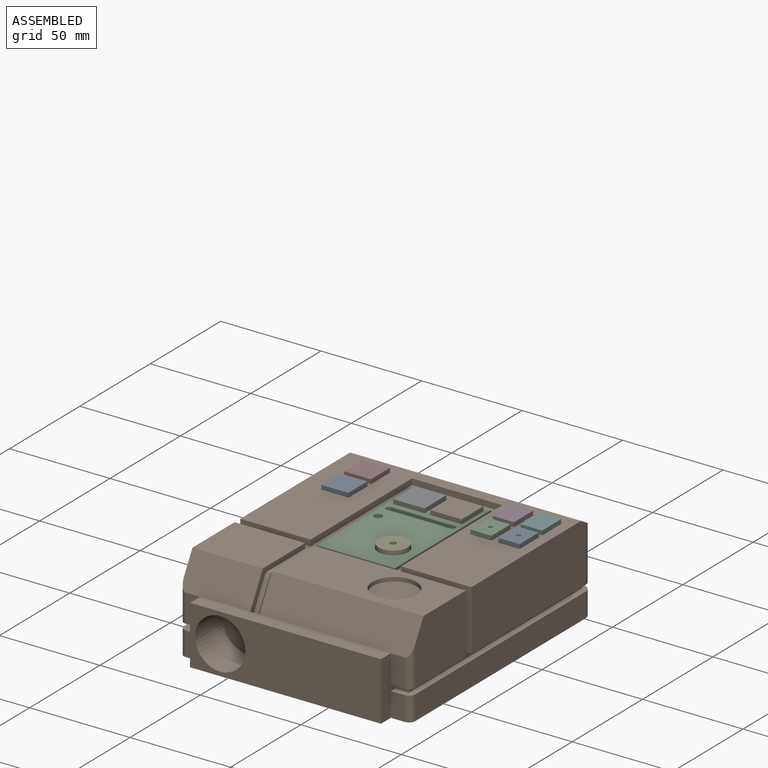
[diagram: assembled view]
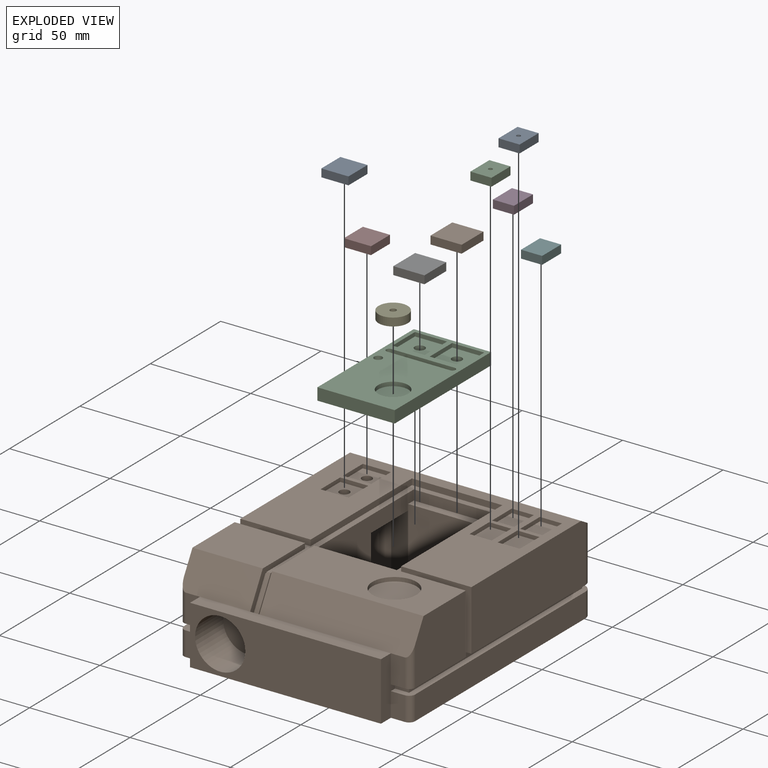
[diagram: exploded view]
GUIDED TOUR — MATED ASSEMBLY (Onshape document 15bef754259e1e879136d337, AutoMate assembly 15bef754259e1e879136d337_5ed76df7bfa122839795acea_01de834090aba72a544a0ada_default)

This assembly has 11 components, labeled P0..P10 below (a component is one placed occurrence of a part; the same part can appear more than once), held together by 10 mates. A mate is a constraint between two components; its type names the relative motion it leaves free:
  FASTENED — locks the two components together rigidly (no relative motion).
Axis/direction vectors are unit vectors and 'through' points are millimeter coordinates, both in the assembly's world frame.

MATES
  1. FASTENED "Fastened 3": P1 <-> P3, direction (0.000, 0.000, 1.000) through (65.15, 29.10, 1.29) mm
  2. FASTENED "Fastened 9": P10 <-> P6, direction (0.000, 0.000, 1.000) through (22.65, 23.60, -0.71) mm
  3. FASTENED "Fastened 1": P1 <-> P7, direction (0.000, 0.000, 1.000) through (-7.85, 29.60, 1.29) mm
  4. FASTENED "Fastened 2": P1 <-> P0, direction (0.000, 0.000, 1.000) through (-7.85, 13.60, 1.29) mm
  5. FASTENED "Fastened 10": P10 <-> P9, direction (0.000, 0.000, 1.000) through (41.15, 23.60, -0.71) mm
  6. FASTENED "Fastened 8": P10 <-> P4, direction (0.000, 0.000, 1.000) through (39.15, -18.90, -0.71) mm
  7. FASTENED "Fastened 5": P1 <-> P2, direction (0.000, 0.000, 1.000) through (65.15, 13.10, 1.29) mm
  8. FASTENED "Fastened 4": P1 <-> P5, direction (0.000, 0.000, 1.000) through (79.15, 29.10, 1.29) mm
  9. FASTENED "Fastened 6": P1 <-> P8, direction (0.000, 0.000, 1.000) through (79.15, 13.10, 1.29) mm
  10. FASTENED "Fastened 7": P1 <-> P10, direction (0.000, 0.000, 1.000) through (12.65, 33.60, -4.71) mm

ASSEMBLY ORDER
  1. P1 — the base component [order verified]
  2. P10 [order verified]
  3. P9 [order verified]
  4. P6 [order verified]
  5. P4 [order verified]
  6. P7 [order verified]
  7. P8 [order verified]
  8. P5 [order verified]
  9. P3 [order verified]
  10. P2 [order verified]
  11. P0 [order verified]
Order-tag legend:
  [order verified] — this step's position reverses a verified removal order: the component was checked to insert without passing through the ones already placed.

Of the 11 components, 1 carries the full construction recipe — the FeatureScript program that regenerates the part's solid from scratch; the rest are supplied as boundary geometry only.
Each toured component is shown spotlighted twice — in the assembled view, then in the exploded view, where a leader line traces a displaced component back to its assembled socket (saturated green if recipe-attached, orange if geometry-only; every other component desaturated gray) — followed by its recipe or geometry summary and the mates that hold it.
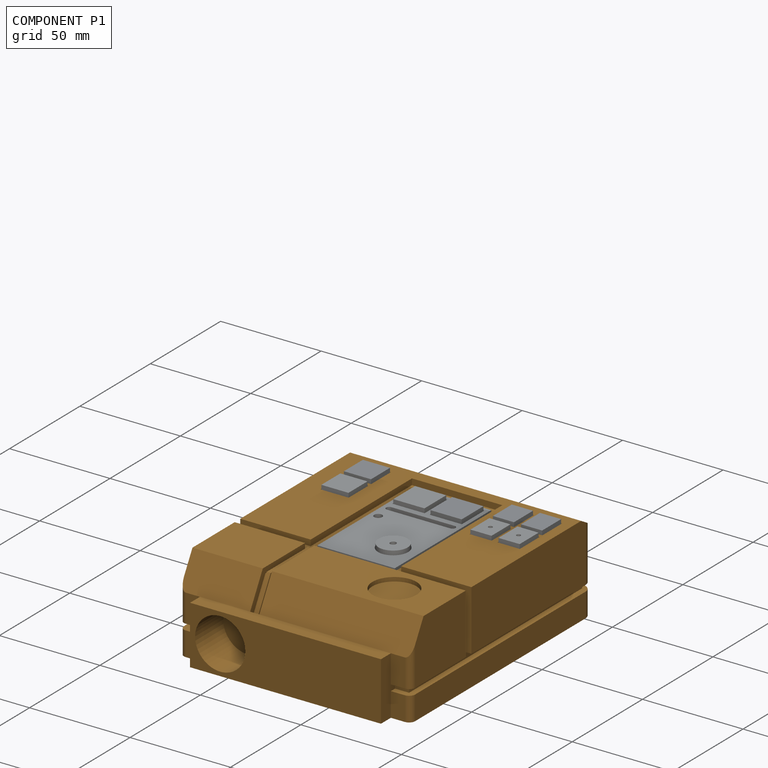
[diagram: component P1 — assembled]
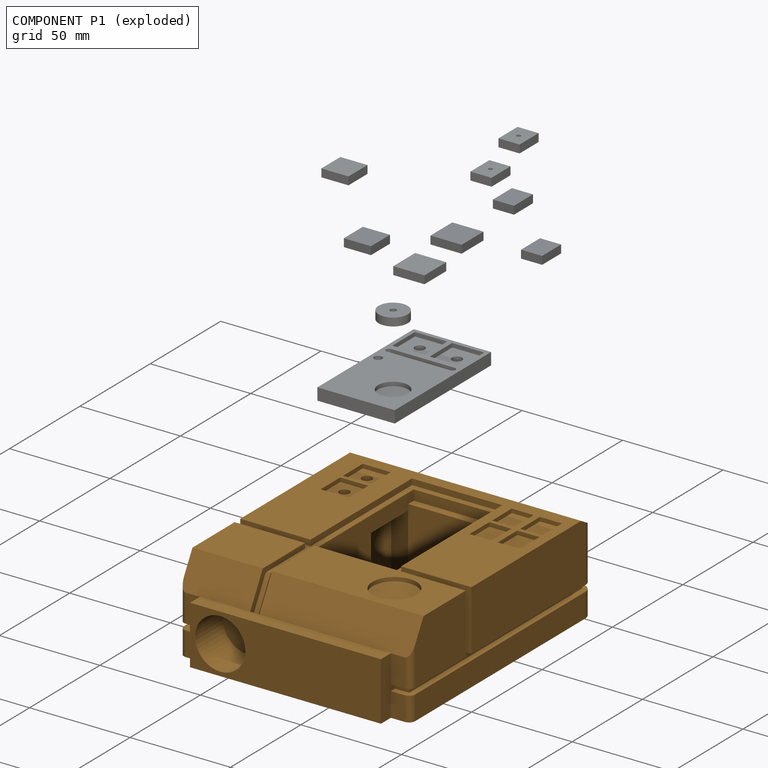
[diagram: component P1 — exploded]
COMPONENT P1 — geometry summary (no construction recipe available for this part):
  bounding box: 140.0 x 115.0 x 45.0 mm
  B-rep topology: 1 solid, 150 faces, 824 edges
  volume: 524000 mm^3 (72% of its bounding box)
Held by: FASTENED mate "Fastened 3" to P3; FASTENED mate "Fastened 1" to P7; FASTENED mate "Fastened 2" to P0; FASTENED mate "Fastened 5" to P2; FASTENED mate "Fastened 4" to P5; FASTENED mate "Fastened 6" to P8; FASTENED mate "Fastened 7" to P10.
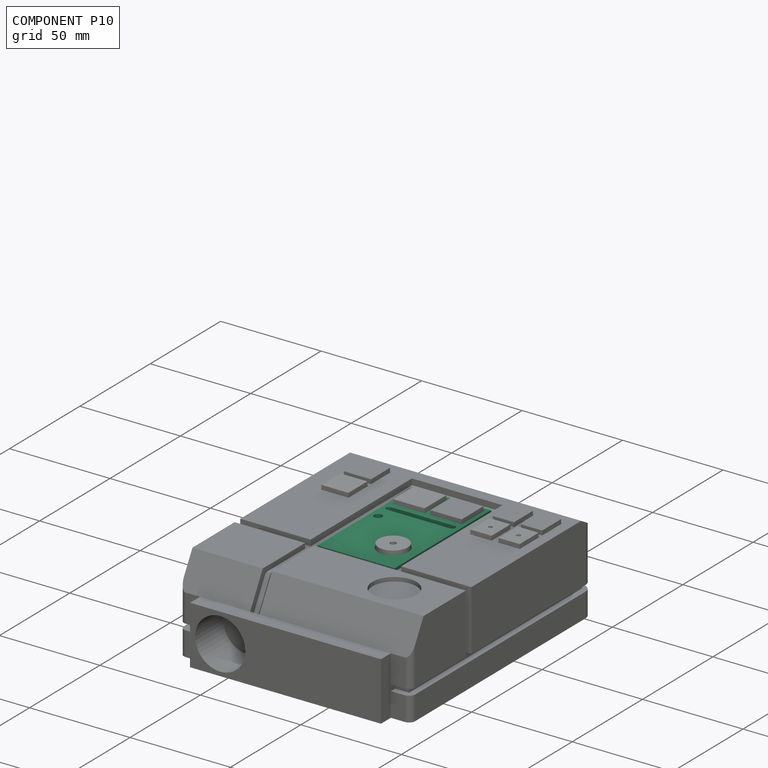
[diagram: component P10 — assembled]
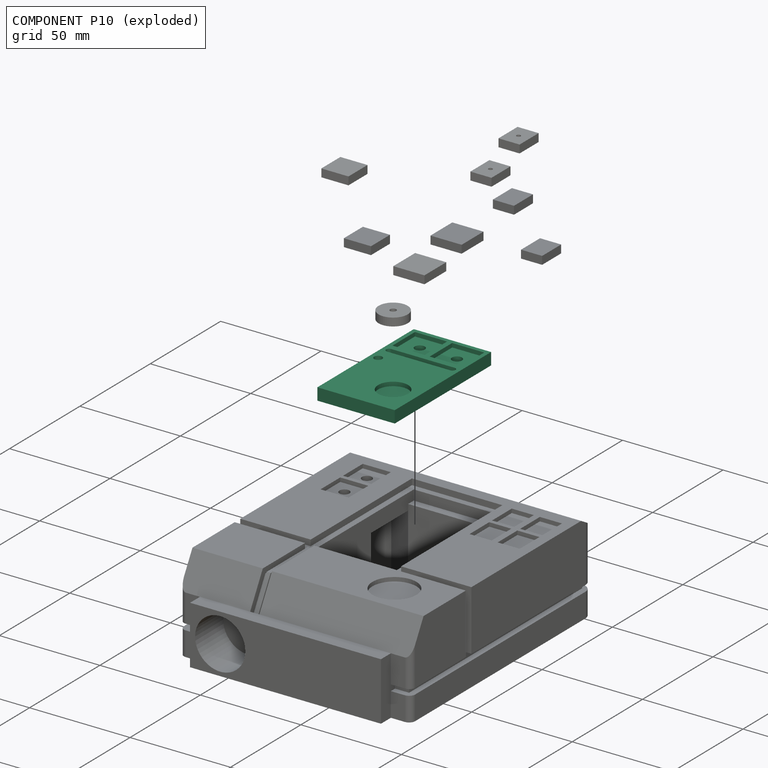
[diagram: component P10 — exploded]
COMPONENT P10 — recipe-attached (CADFS 00463688, mesh-verified: the recipe's output STEP matches this component's geometry to below the mesh-comparison resolution (tessellation chordal tolerance ~0.118 mm)).
Held by: FASTENED mate "Fastened 9" to P6; FASTENED mate "Fastened 10" to P9; FASTENED mate "Fastened 8" to P4; FASTENED mate "Fastened 7" to P1.
Construction recipe (FeatureScript — the CAD program that rebuilds this solid; sketch coordinates are in the units given by the * unit suffixes, e.g. mm):

FeatureScript 1511;
import(path : "onshape/std/geometry.fs", version : "1511.0");
import(path : "onshape/std/common.fs", version : "1511.0");
const mm = millimeter;
const VERTEX = EntityType.VERTEX;
const EDGE = EntityType.EDGE;
const FACE = EntityType.FACE;
const BODY = EntityType.BODY;
function v(x, y){return vector(x, y);}
function OD(order){return orderDisambiguation(order);}
function OSD(set){return originalSetDisambiguation(set);}
function TD(topology){return topologyDisambiguation(topology);}
function TDD(query){return trueDependencyDisambiguation(query);}
function sQuery(a, b, c) {return sketchEntityQuery(a, b, c);}

annotation { "Feature Type Name" : "Feature", "Feature Type Description" : "" }
export const myFeature = defineFeature(function(context is Context, id is Id, definition is map)
    precondition{}
    {
        {
            var Q0;
            Q0=qCreatedBy(makeId("Top.planeOp"),FACE);
            var sketch = newSketch(context, id + "F0", { "sketchPlane" : qUnion([Q0])});
            skLineSegment(sketch, "E0.bottom", {"start": v(-19.25, 34.25) * mm, "end": v(19.25, 34.25) * mm});
            skLineSegment(sketch, "E0.top", {"start": v(-19.25, -34.25) * mm, "end": v(19.25, -34.25) * mm});
            skLineSegment(sketch, "E0.left", {"start": v(-19.25, 34.25) * mm, "end": v(-19.25, -34.25) * mm});
            skLineSegment(sketch, "E0.right", {"start": v(19.25, 34.25) * mm, "end": v(19.25, -34.25) * mm});
            skPoint(sketch, "E0.middle", {"position": v(0, 0) * mm});
            skSolve(sketch);
        }
        {
            var Q0;
            Q0 = qSketchRegion(id + "F0", true);
            extrude(context, id + "F1", {"entities" : qUnion([Q0]), "depth" : 6 * mm});
        }
        {
            var Q0;
            Q0=makeQuery(id+"F1.opExtrude","CAP_FACE",FACE,{"disambiguationData":[OSD([sQuery(id+"F0.wireOp",EDGE,"E0.bottom"),sQuery(id+"F0.wireOp",EDGE,"E0.top"),sQuery(id+"F0.wireOp",EDGE,"E0.left"),sQuery(id+"F0.wireOp",EDGE,"E0.right")])],"isStart":false});
            var sketch = newSketch(context, id + "F2", { "sketchPlane" : qUnion([Q0])});
            skLineSegment(sketch, "E1.bottom", {"start": v(-17.25, 32.25) * mm, "end": v(-1.25, 32.25) * mm});
            skLineSegment(sketch, "E1.top", {"start": v(-17.25, 16.25) * mm, "end": v(-1.25, 16.25) * mm});
            skLineSegment(sketch, "E1.left", {"start": v(-17.25, 32.25) * mm, "end": v(-17.25, 16.25) * mm});
            skLineSegment(sketch, "E1.right", {"start": v(-1.25, 32.25) * mm, "end": v(-1.25, 16.25) * mm});
            skLineSegment(sketch, "E2.bottom", {"start": v(1.25, 32.25) * mm, "end": v(17.25, 32.25) * mm});
            skLineSegment(sketch, "E2.top", {"start": v(1.25, 16.25) * mm, "end": v(17.25, 16.25) * mm});
            skLineSegment(sketch, "E2.left", {"start": v(1.25, 32.25) * mm, "end": v(1.25, 16.25) * mm});
            skLineSegment(sketch, "E2.right", {"start": v(17.25, 32.25) * mm, "end": v(17.25, 16.25) * mm});
            skLineSegment(sketch, "E3", {"start": v(-19.25, 25.57) * mm, "end": v(-17.25, 25.57) * mm, "construction": true});
            skLineSegment(sketch, "E4", {"start": v(17.25, 24.25) * mm, "end": v(19.25, 24.25) * mm, "construction": true});
            skLineSegment(sketch, "E5", {"start": v(-9.18, 34.25) * mm, "end": v(-9.25, 32.25) * mm, "construction": true});
            skLineSegment(sketch, "E6", {"start": v(11.67, 34.25) * mm, "end": v(11.67, 32.25) * mm, "construction": true});
            skSolve(sketch);
        }
        {
            var Q0;
            Q0=makeQuery(id+"F2.imprint","IMPRINT",FACE,{"disambiguationData":[TD([[makeQuery(id+"F2.imprint","IMPRINT",EDGE,{"derivedFrom":sQuery(id+"F2.wireOp",EDGE,"E1.bottom")}),-1.0]])]});
            var Q1;
            Q1=makeQuery(id+"F2.imprint","IMPRINT",FACE,{"disambiguationData":[TD([[makeQuery(id+"F2.imprint","IMPRINT",EDGE,{"derivedFrom":sQuery(id+"F2.wireOp",EDGE,"E2.bottom")}),-1.0]])]});
            extrude(context, id + "F3", {"entities" : qUnion([Q0, Q1]), "operationType" : NewBodyOperationType.REMOVE, "oppositeDirection" : true, "depth" : 2 * mm});
        }
        {
            var Q0;
            Q0=makeQuery(id+"F1.opExtrude","CAP_FACE",FACE,{"disambiguationData":[OSD([sQuery(id+"F0.wireOp",EDGE,"E0.bottom"),sQuery(id+"F0.wireOp",EDGE,"E0.top"),sQuery(id+"F0.wireOp",EDGE,"E0.left"),sQuery(id+"F0.wireOp",EDGE,"E0.right")])],"isStart":false});
            var sketch = newSketch(context, id + "F4", { "sketchPlane" : qUnion([Q0])});
            skLineSegment(sketch, "E7", {"start": v(-17.25, 16.25) * mm, "end": v(-17.25, 13.25) * mm, "construction": true});
            skLineSegment(sketch, "E8.bottom", {"start": v(-17.25, 13.25) * mm, "end": v(17.25, 13.25) * mm});
            skLineSegment(sketch, "E8.top", {"start": v(-17.25, 10.25) * mm, "end": v(17.25, 10.25) * mm});
            skLineSegment(sketch, "E8.left", {"start": v(-17.25, 13.25) * mm, "end": v(-17.25, 10.25) * mm});
            skLineSegment(sketch, "E8.right", {"start": v(17.25, 13.25) * mm, "end": v(17.25, 10.25) * mm});
            skLineSegment(sketch, "E9", {"start": v(-17.25, 13.25) * mm, "end": v(-15.75, 13.25) * mm, "construction": true});
            skLineSegment(sketch, "E10", {"start": v(17.25, 13.25) * mm, "end": v(15.75, 13.25) * mm, "construction": true});
            skCircle(sketch, "E11", {"center": v(15.75, 11.75) * mm, "radius": 1.5 * mm});
            skPoint(sketch, "E11.second.point", {"position": v(17.25, 11.75) * mm});
            skPoint(sketch, "E11.third.point", {"position": v(15.75, 10.25) * mm});
            skCircle(sketch, "E12", {"center": v(-15.75, 11.75) * mm, "radius": 1.5 * mm});
            skPoint(sketch, "E12.second.point", {"position": v(-17.25, 11.75) * mm});
            skPoint(sketch, "E12.third.point", {"position": v(-15.75, 10.25) * mm});
            skSolve(sketch);
        }
        {
            var Q0;
            {var subQ0=sQuery(id+"F4.wireOp",EDGE,"E12");var subQ1=sQuery(id+"F4.wireOp",EDGE,"E8.bottom");var subQ2=makeQuery(id+"F4.imprint","INTERSECT",VERTEX,{"derivedFrom":[subQ1,subQ0]});Q0=makeQuery(id+"F4.imprint","IMPRINT",FACE,{"disambiguationData":[TD([[makeQuery(id+"F4.imprint","IMPRINT",EDGE,{"disambiguationData":[TD([[subQ2,-1.0]])],"derivedFrom":subQ1}),-1.0]])]});}
            var Q1;
            {var subQ0=sQuery(id+"F4.wireOp",EDGE,"E12");var subQ1=makeQuery(id+"F4.imprint","INTERSECT",VERTEX,{"derivedFrom":[sQuery(id+"F4.wireOp",EDGE,"E8.bottom"),subQ0]});Q1=makeQuery(id+"F4.imprint","IMPRINT",FACE,{"disambiguationData":[TD([[makeQuery(id+"F4.imprint","IMPRINT",EDGE,{"disambiguationData":[TD([[subQ1,-1.0]])],"derivedFrom":subQ0}),1.0]])]});}
            var Q2;
            {var subQ0=sQuery(id+"F4.wireOp",EDGE,"E11");var subQ1=makeQuery(id+"F4.imprint","INTERSECT",VERTEX,{"derivedFrom":[sQuery(id+"F4.wireOp",EDGE,"E8.bottom"),subQ0]});Q2=makeQuery(id+"F4.imprint","IMPRINT",FACE,{"disambiguationData":[TD([[makeQuery(id+"F4.imprint","IMPRINT",EDGE,{"disambiguationData":[TD([[subQ1,1.0]])],"derivedFrom":subQ0}),1.0]])]});}
            extrude(context, id + "F5", {"entities" : qUnion([Q0, Q1, Q2]), "operationType" : NewBodyOperationType.REMOVE, "oppositeDirection" : true, "depth" : 2 * mm});
        }
        {
            var Q0;
            Q0=makeQuery(id+"F1.opExtrude","CAP_FACE",FACE,{"disambiguationData":[OSD([sQuery(id+"F0.wireOp",EDGE,"E0.bottom"),sQuery(id+"F0.wireOp",EDGE,"E0.top"),sQuery(id+"F0.wireOp",EDGE,"E0.left"),sQuery(id+"F0.wireOp",EDGE,"E0.right")])],"isStart":false});
            var sketch = newSketch(context, id + "F6", { "sketchPlane" : qUnion([Q0])});
            skLineSegment(sketch, "E13", {"start": v(7.25, -34.25) * mm, "end": v(7.25, -18.25) * mm, "construction": true});
            skLineSegment(sketch, "E14", {"start": v(7.25, -18.25) * mm, "end": v(19.25, -18.25) * mm, "construction": true});
            skCircle(sketch, "E15", {"center": v(7.25, -18.25) * mm, "radius": 7.5 * mm});
            skSolve(sketch);
        }
        {
            var Q0;
            Q0=makeQuery(id+"F6.imprint","IMPRINT",FACE,{"disambiguationData":[TD([[makeQuery(id+"F6.imprint","IMPRINT",EDGE,{"derivedFrom":sQuery(id+"F6.wireOp",EDGE,"E15")}),1.0]])]});
            extrude(context, id + "F7", {"entities" : qUnion([Q0]), "operationType" : NewBodyOperationType.REMOVE, "oppositeDirection" : true, "depth" : 2 * mm});
        }
        {
            var Q0;
            Q0=makeQuery(id+"F1.opExtrude","CAP_FACE",FACE,{"disambiguationData":[OSD([sQuery(id+"F0.wireOp",EDGE,"E0.bottom"),sQuery(id+"F0.wireOp",EDGE,"E0.top"),sQuery(id+"F0.wireOp",EDGE,"E0.left"),sQuery(id+"F0.wireOp",EDGE,"E0.right")])],"isStart":false});
            var sketch = newSketch(context, id + "F8", { "sketchPlane" : qUnion([Q0])});
            skLineSegment(sketch, "E16", {"start": v(-15.25, 10.25) * mm, "end": v(-15.25, 3.25) * mm, "construction": true});
            skLineSegment(sketch, "E17", {"start": v(-15.25, 3.25) * mm, "end": v(-19.25, 3.25) * mm, "construction": true});
            skCircle(sketch, "E18", {"center": v(-15.25, 3.25) * mm, "radius": 2 * mm});
            skSolve(sketch);
        }
        {
            var Q0;
            Q0=makeQuery(id+"F8.imprint","IMPRINT",FACE,{"disambiguationData":[TD([[makeQuery(id+"F8.imprint","IMPRINT",EDGE,{"derivedFrom":sQuery(id+"F8.wireOp",EDGE,"E18")}),1.0]])]});
            var Q1;
            Q1=sQuery(id+"F8.wireOp",EDGE,"E18");
            extrude(context, id + "F9", {"entities" : qUnion([Q0]), "operationType" : NewBodyOperationType.REMOVE, "surfaceEntities" : qUnion([Q1]), "oppositeDirection" : true, "depth" : 8 * mm});
        }
        {
            var Q0;
            Q0=makeQuery(id+"F3.boolean.opBoolean","COPY",FACE,{"derivedFrom":makeQuery(id+"F3.opExtrude","CAP_FACE",FACE,{"disambiguationData":[OSD([sQuery(id+"F2.wireOp",EDGE,"E1.bottom"),sQuery(id+"F2.wireOp",EDGE,"E1.top"),sQuery(id+"F2.wireOp",EDGE,"E1.left"),sQuery(id+"F2.wireOp",EDGE,"E1.right")])],"isStart":false})});
            var sketch = newSketch(context, id + "F10", { "sketchPlane" : qUnion([Q0])});
            skCircle(sketch, "E19", {"center": v(-9.25, 24.25) * mm, "radius": 2.5 * mm});
            skPoint(sketch, "E19.centerSnap0", {"position": v(-9.25, 32.25) * mm});
            skPoint(sketch, "E19.centerSnap1", {"position": v(-17.25, 24.25) * mm});
            skSolve(sketch);
        }
        {
            var Q0;
            Q0 = qSketchRegion(id + "F10", true);
            extrude(context, id + "F11", {"entities" : qUnion([Q0]), "operationType" : NewBodyOperationType.REMOVE, "oppositeDirection" : true, "depth" : 25 * mm, "offsetDistance" : 25 * mm});
        }
        {
            var Q0;
            Q0=makeQuery(id+"F3.boolean.opBoolean","COPY",FACE,{"derivedFrom":makeQuery(id+"F3.opExtrude","CAP_FACE",FACE,{"disambiguationData":[OSD([sQuery(id+"F2.wireOp",EDGE,"E2.bottom"),sQuery(id+"F2.wireOp",EDGE,"E2.top"),sQuery(id+"F2.wireOp",EDGE,"E2.left"),sQuery(id+"F2.wireOp",EDGE,"E2.right")])],"isStart":false})});
            var sketch = newSketch(context, id + "F12", { "sketchPlane" : qUnion([Q0])});
            skCircle(sketch, "E20", {"center": v(9.25, 24.25) * mm, "radius": 2.5 * mm});
            skPoint(sketch, "E20.centerSnap0", {"position": v(9.25, 32.25) * mm});
            skPoint(sketch, "E20.centerSnap1", {"position": v(1.25, 24.25) * mm});
            skSolve(sketch);
        }
        {
            var Q0;
            Q0=makeQuery(id+"F12.imprint","IMPRINT",FACE,{"disambiguationData":[TD([[makeQuery(id+"F12.imprint","IMPRINT",EDGE,{"derivedFrom":sQuery(id+"F12.wireOp",EDGE,"E20")}),1.0]])]});
            extrude(context, id + "F13", {"entities" : qUnion([Q0]), "operationType" : NewBodyOperationType.REMOVE, "oppositeDirection" : true, "depth" : 25 * mm, "offsetDistance" : 25 * mm});
        }
    });
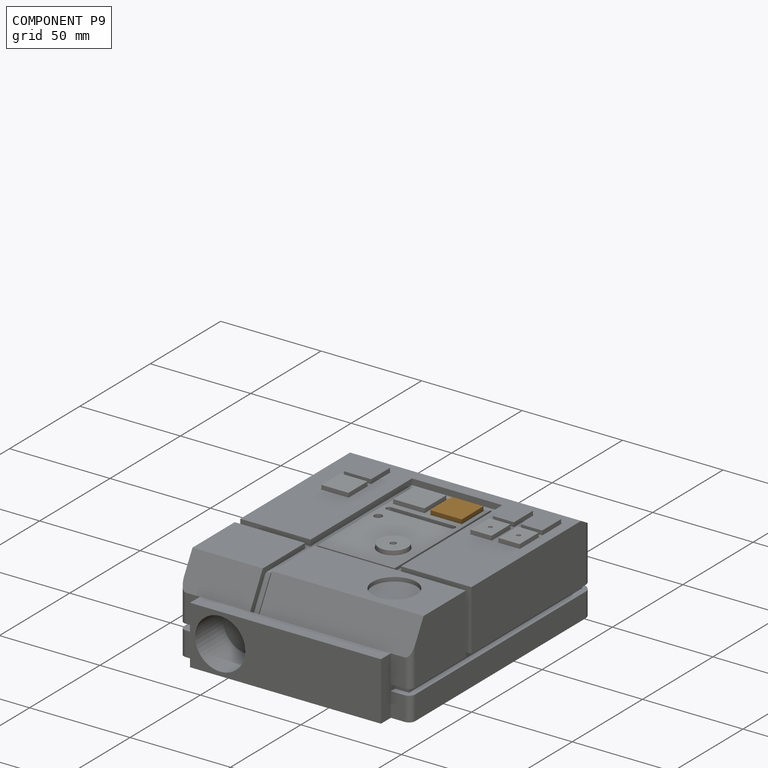
[diagram: component P9 — assembled]
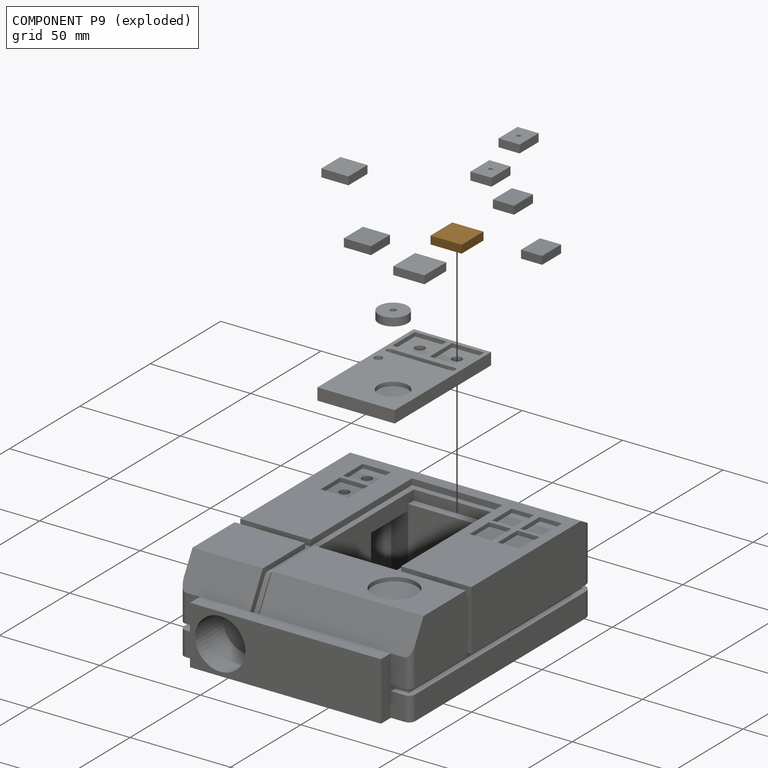
[diagram: component P9 — exploded]
COMPONENT P9 — geometry summary (no construction recipe available for this part):
  bounding box: 15.5 x 15.5 x 4.0 mm
  B-rep topology: 1 solid, 6 faces, 24 edges
  volume: 961 mm^3 (100% of its bounding box)
  symmetry: 2-fold rotationally symmetric about the x axis; 2-fold rotationally symmetric about the y axis; 4-fold rotationally symmetric about the z axis; mirror-symmetric across its x mid-plane, y mid-plane, z mid-plane
Held by: FASTENED mate "Fastened 10" to P10.
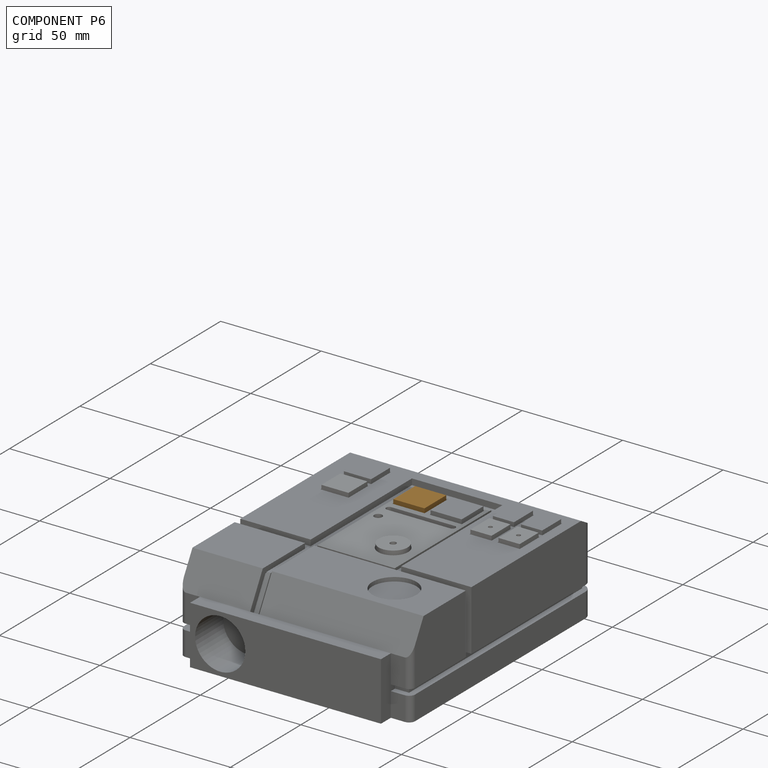
[diagram: component P6 — assembled]
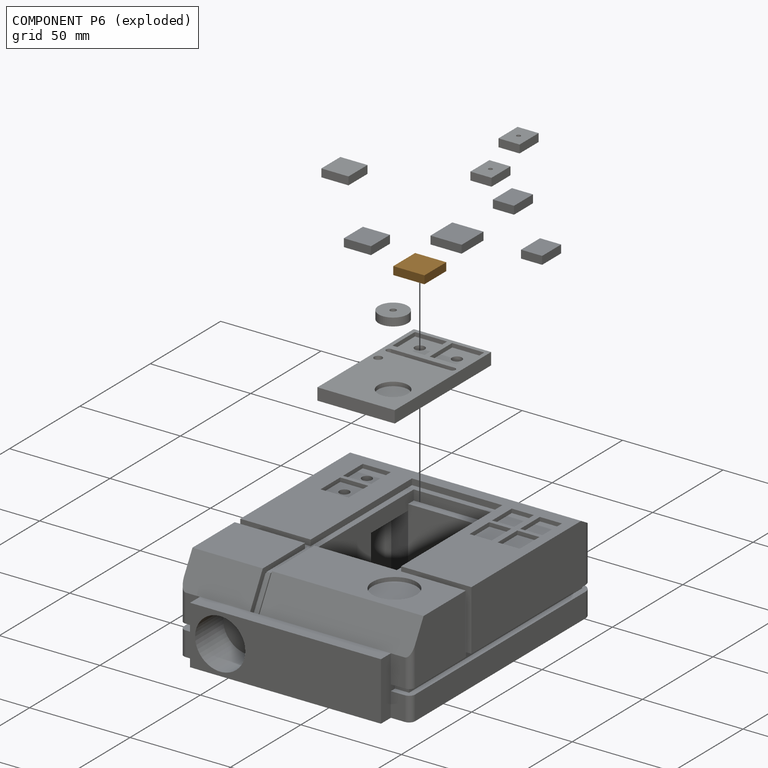
[diagram: component P6 — exploded]
COMPONENT P6 — geometry summary (no construction recipe available for this part):
  bounding box: 15.5 x 15.5 x 4.0 mm
  B-rep topology: 1 solid, 6 faces, 24 edges
  volume: 961 mm^3 (100% of its bounding box)
  symmetry: 2-fold rotationally symmetric about the x axis; 2-fold rotationally symmetric about the y axis; 4-fold rotationally symmetric about the z axis; mirror-symmetric across its x mid-plane, y mid-plane, z mid-plane
Held by: FASTENED mate "Fastened 9" to P10.
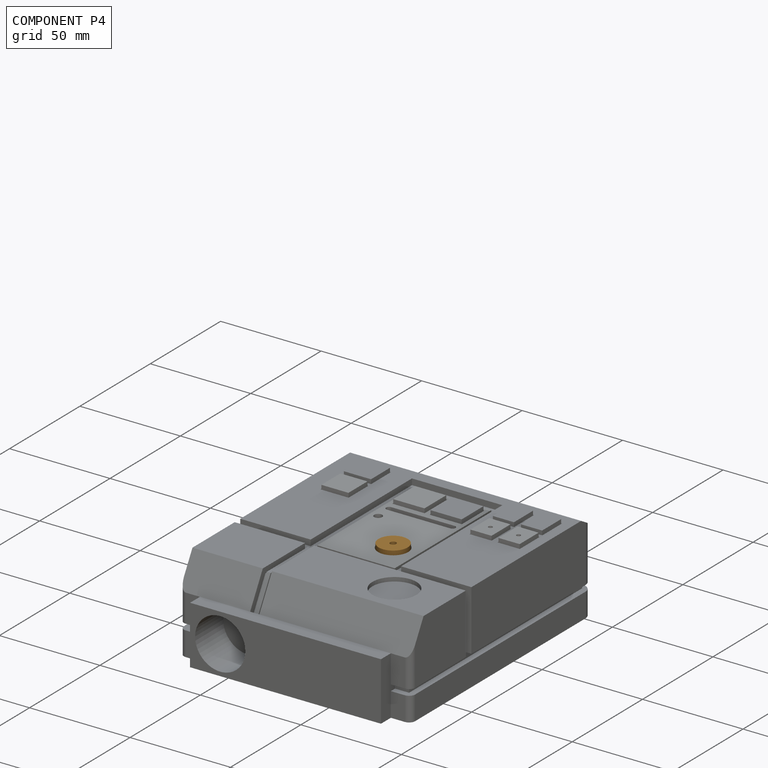
[diagram: component P4 — assembled]
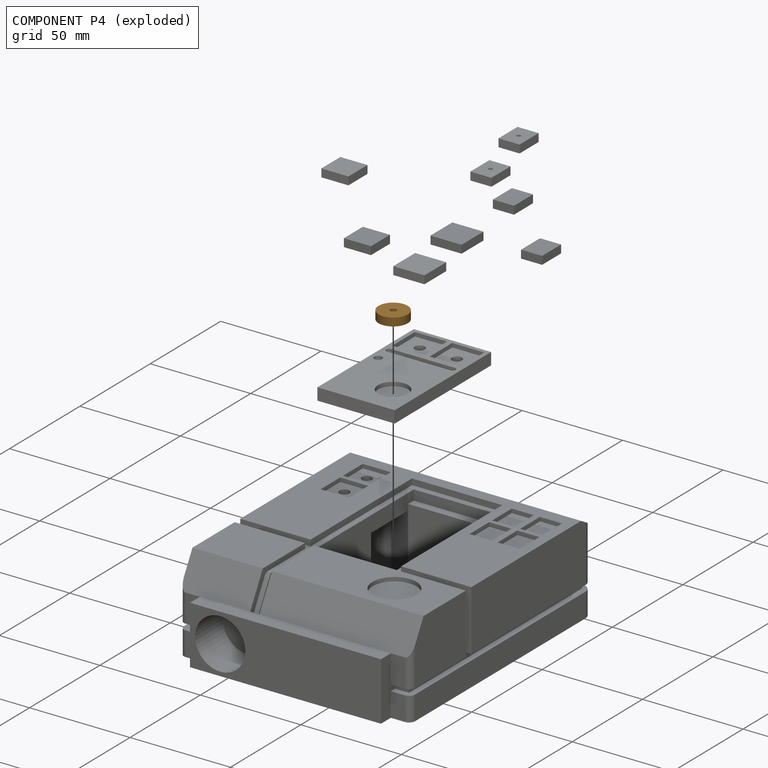
[diagram: component P4 — exploded]
COMPONENT P4 — geometry summary (no construction recipe available for this part):
  bounding box: 14.5 x 14.5 x 4.0 mm
  B-rep topology: 1 solid, 5 faces, 12 edges
  volume: 646 mm^3 (77% of its bounding box)
  symmetry: revolution-symmetric about the z axis through its bounding-box center; mirror-symmetric across its x mid-plane, y mid-plane
Held by: FASTENED mate "Fastened 8" to P10.
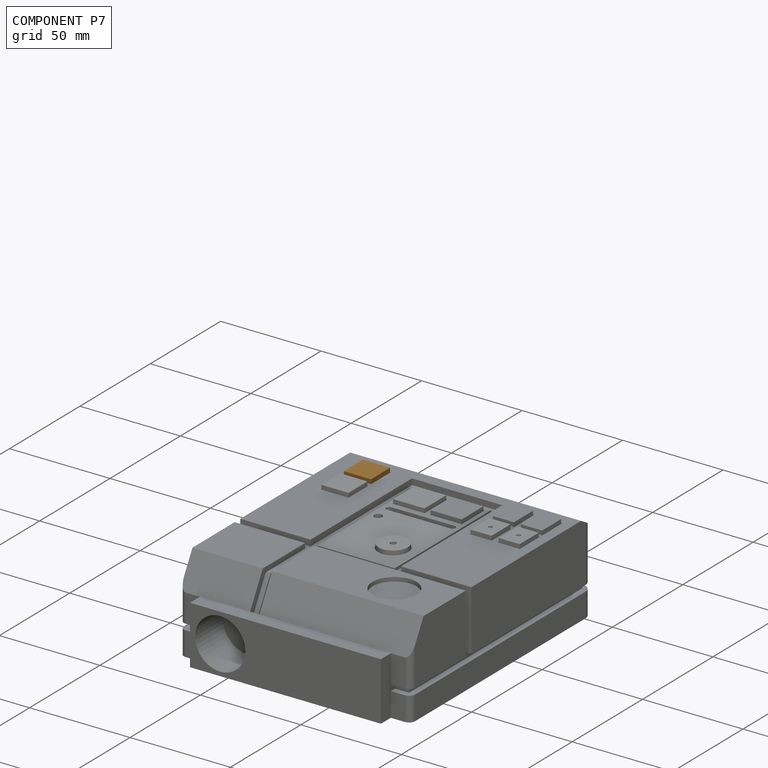
[diagram: component P7 — assembled]
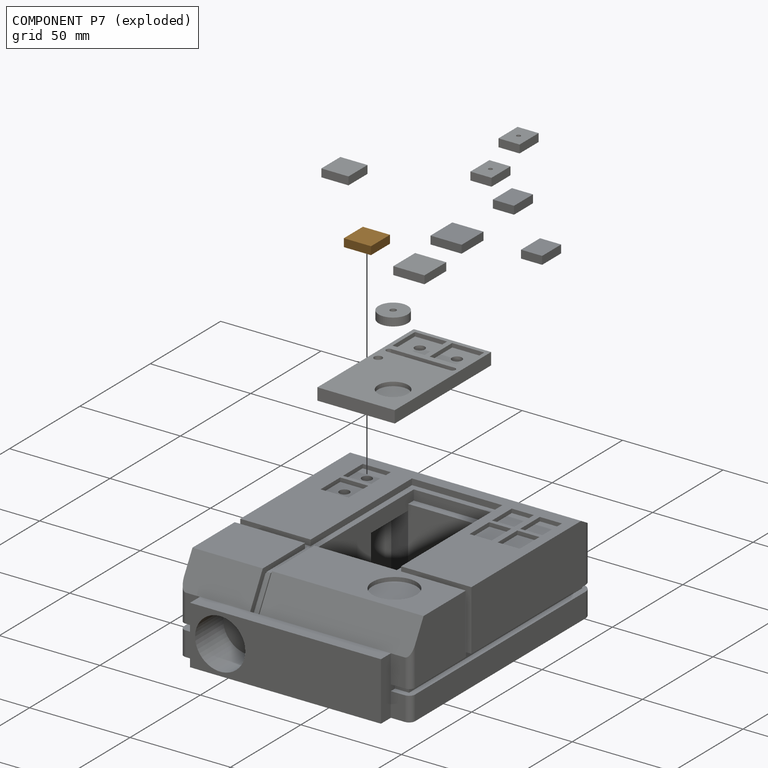
[diagram: component P7 — exploded]
COMPONENT P7 — geometry summary (no construction recipe available for this part):
  bounding box: 13.5 x 13.5 x 4.0 mm
  B-rep topology: 1 solid, 6 faces, 24 edges
  volume: 729 mm^3 (100% of its bounding box)
  symmetry: 2-fold rotationally symmetric about the x axis; 2-fold rotationally symmetric about the y axis; 4-fold rotationally symmetric about the z axis; mirror-symmetric across its x mid-plane, y mid-plane, z mid-plane
Held by: FASTENED mate "Fastened 1" to P1.
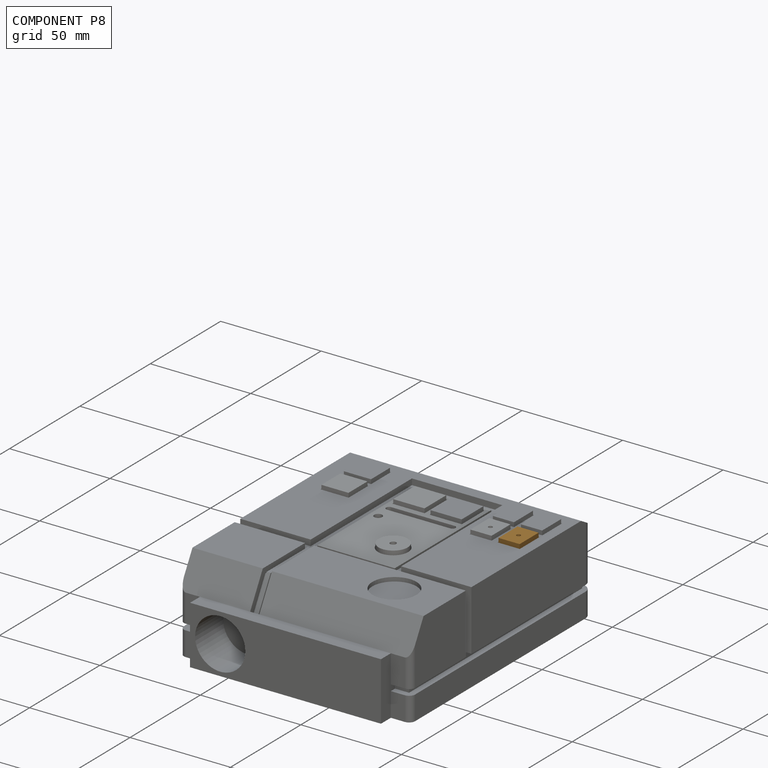
[diagram: component P8 — assembled]
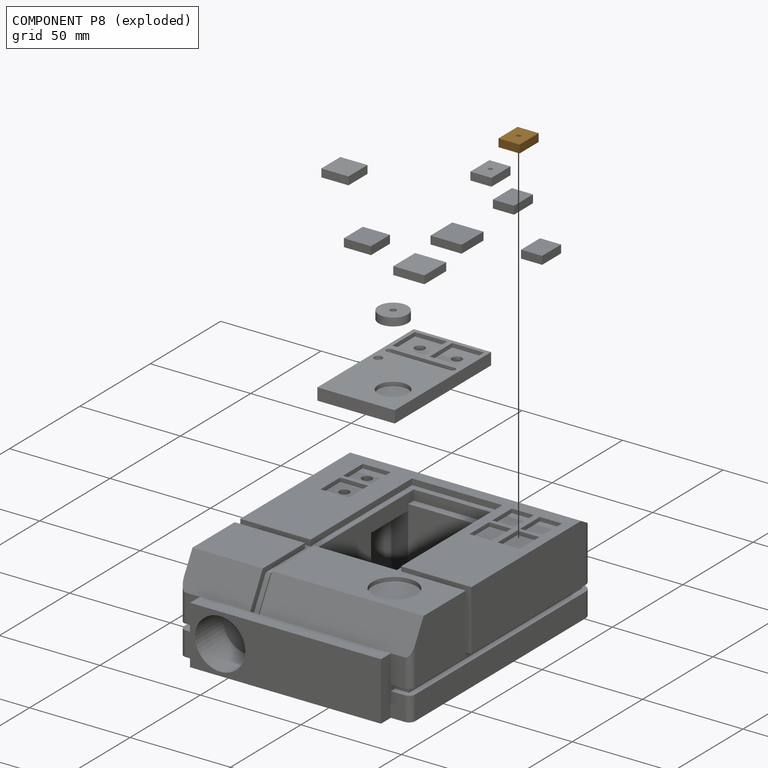
[diagram: component P8 — exploded]
COMPONENT P8 — geometry summary (no construction recipe available for this part):
  bounding box: 13.5 x 10.5 x 4.0 mm
  B-rep topology: 1 solid, 8 faces, 30 edges
  volume: 561 mm^3 (99% of its bounding box)
  symmetry: 2-fold rotationally symmetric about the z axis; mirror-symmetric across its x mid-plane, y mid-plane
Held by: FASTENED mate "Fastened 6" to P1.
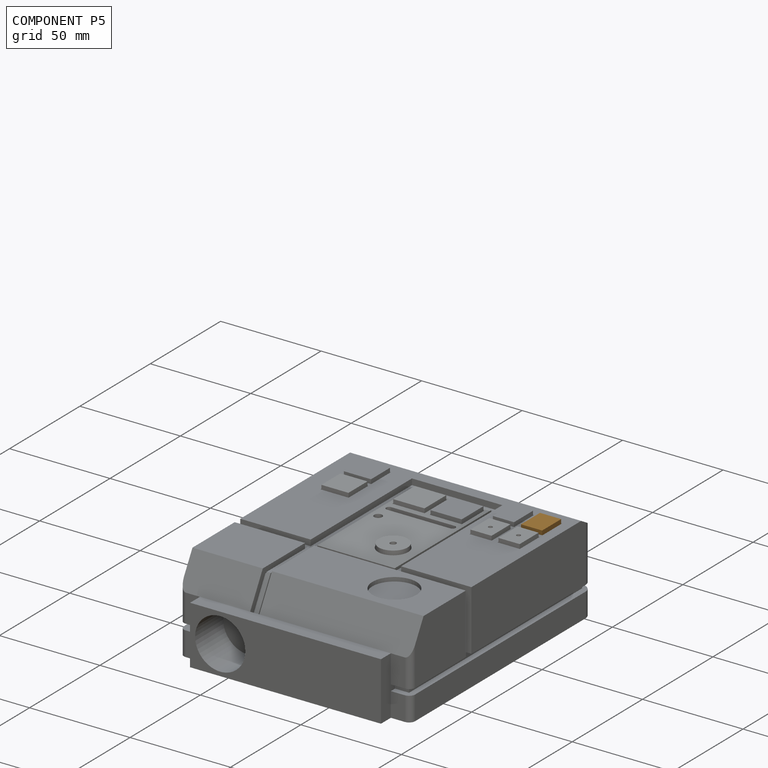
[diagram: component P5 — assembled]
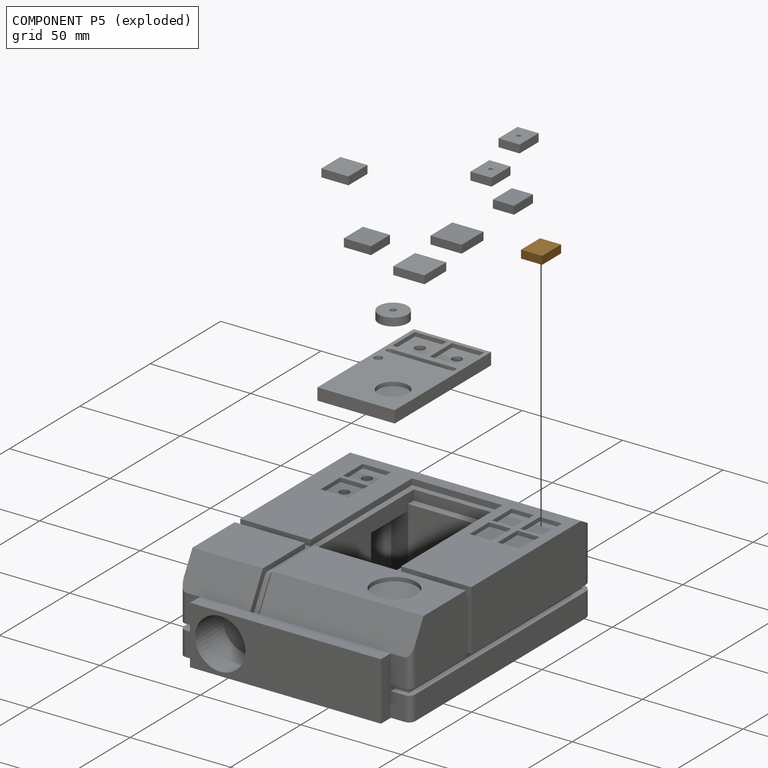
[diagram: component P5 — exploded]
COMPONENT P5 — geometry summary (no construction recipe available for this part):
  bounding box: 13.5 x 10.5 x 4.0 mm
  B-rep topology: 1 solid, 6 faces, 24 edges
  volume: 567 mm^3 (100% of its bounding box)
  symmetry: 2-fold rotationally symmetric about the x axis; 2-fold rotationally symmetric about the y axis; 2-fold rotationally symmetric about the z axis; mirror-symmetric across its x mid-plane, y mid-plane, z mid-plane
Held by: FASTENED mate "Fastened 4" to P1.
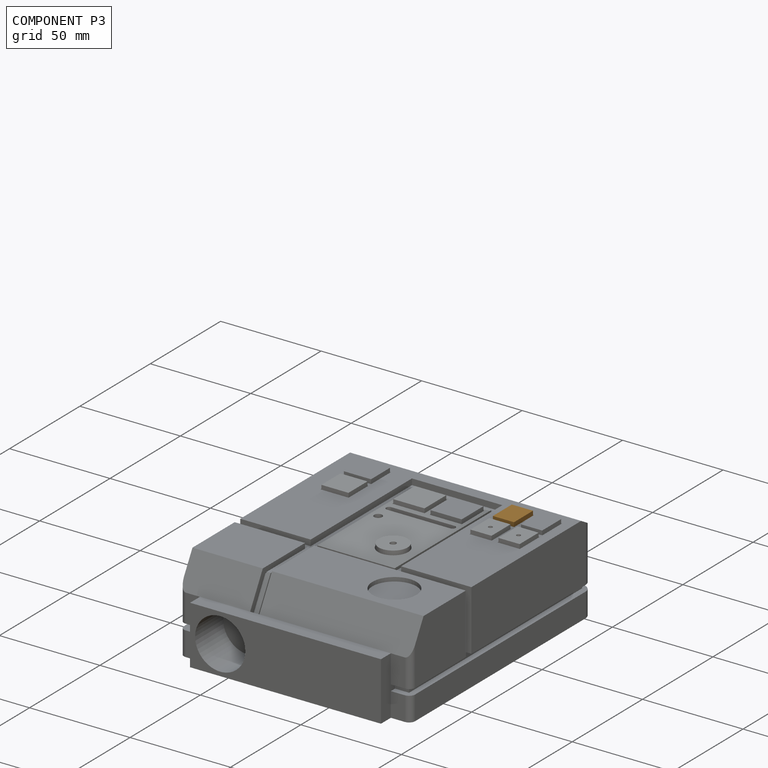
[diagram: component P3 — assembled]
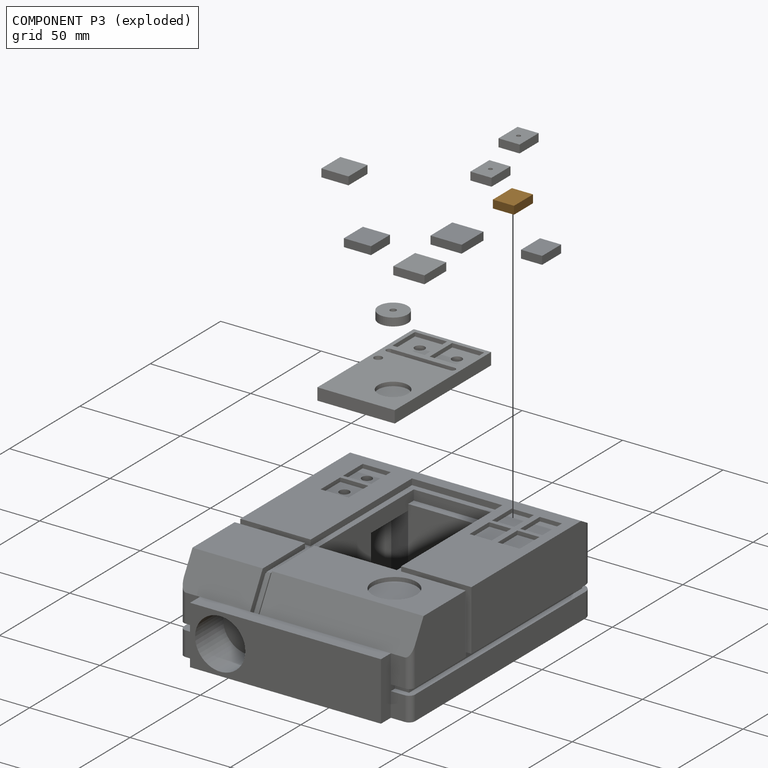
[diagram: component P3 — exploded]
COMPONENT P3 — geometry summary (no construction recipe available for this part):
  bounding box: 13.5 x 10.5 x 4.0 mm
  B-rep topology: 1 solid, 6 faces, 24 edges
  volume: 567 mm^3 (100% of its bounding box)
  symmetry: 2-fold rotationally symmetric about the x axis; 2-fold rotationally symmetric about the y axis; 2-fold rotationally symmetric about the z axis; mirror-symmetric across its x mid-plane, y mid-plane, z mid-plane
Held by: FASTENED mate "Fastened 3" to P1.
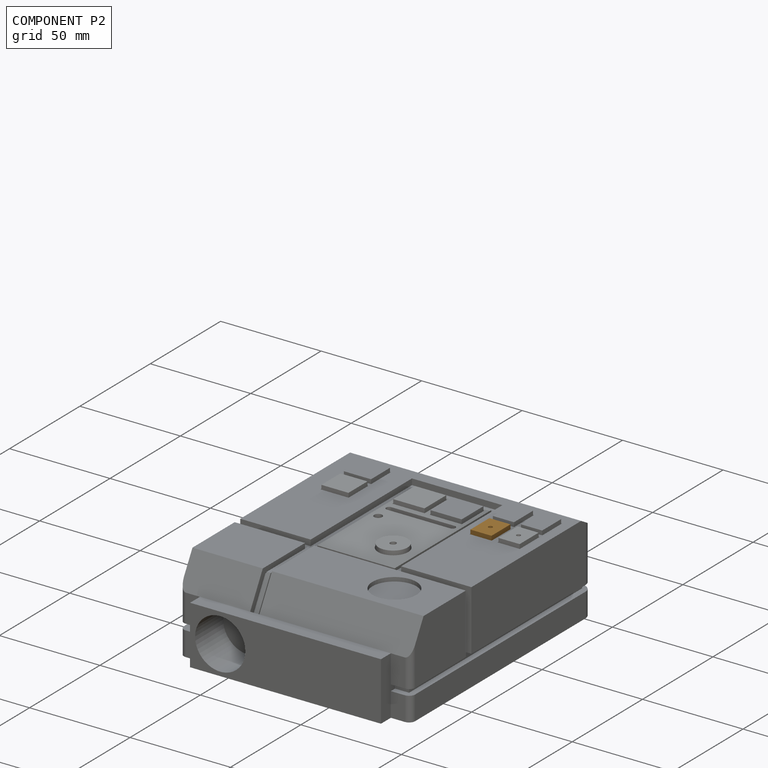
[diagram: component P2 — assembled]
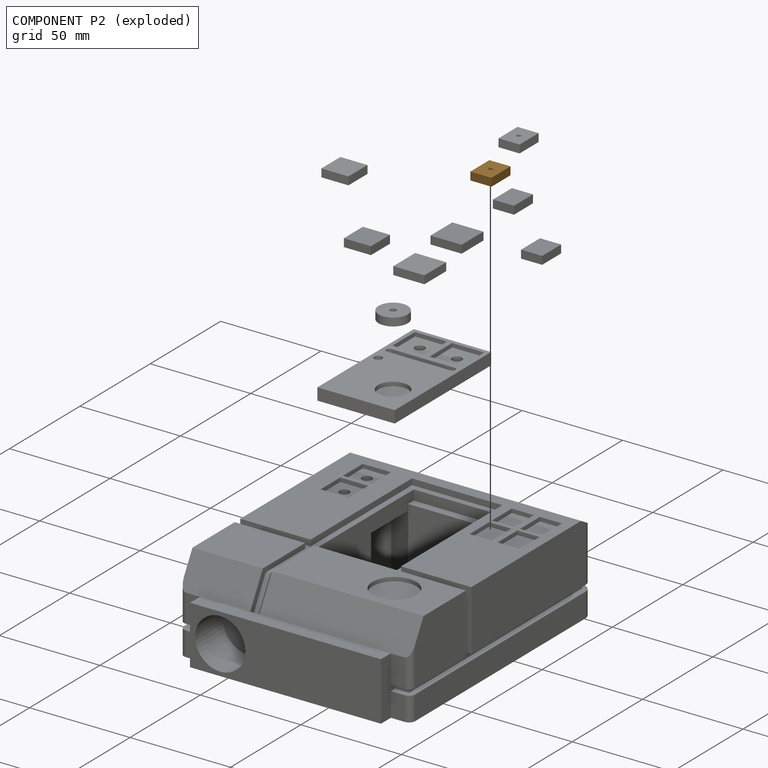
[diagram: component P2 — exploded]
COMPONENT P2 — geometry summary (no construction recipe available for this part):
  bounding box: 13.5 x 10.5 x 4.0 mm
  B-rep topology: 1 solid, 8 faces, 30 edges
  volume: 561 mm^3 (99% of its bounding box)
  symmetry: 2-fold rotationally symmetric about the z axis; mirror-symmetric across its x mid-plane, y mid-plane
Held by: FASTENED mate "Fastened 5" to P1.
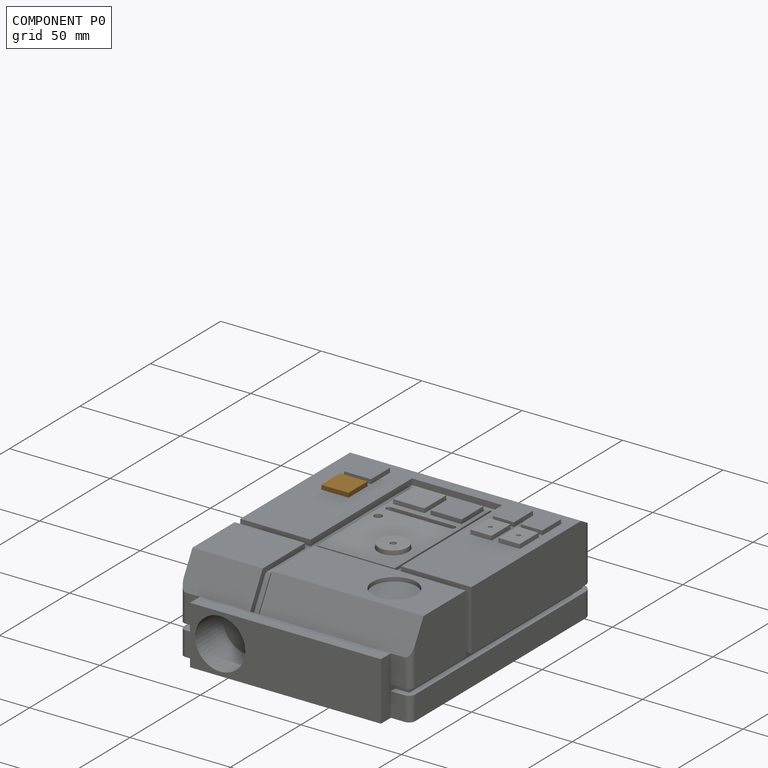
[diagram: component P0 — assembled]
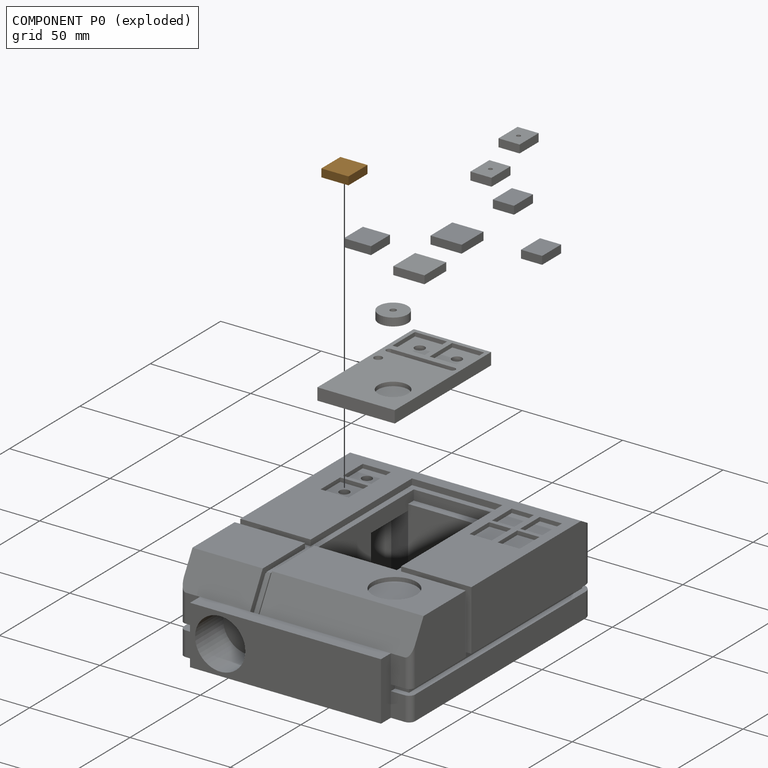
[diagram: component P0 — exploded]
COMPONENT P0 — geometry summary (no construction recipe available for this part):
  bounding box: 13.5 x 13.5 x 4.0 mm
  B-rep topology: 1 solid, 6 faces, 24 edges
  volume: 729 mm^3 (100% of its bounding box)
  symmetry: 2-fold rotationally symmetric about the x axis; 2-fold rotationally symmetric about the y axis; 4-fold rotationally symmetric about the z axis; mirror-symmetric across its x mid-plane, y mid-plane, z mid-plane
Held by: FASTENED mate "Fastened 2" to P1.
PROVENANCE & LICENSES
Assembly (occurrences, transforms, mates, per-part STEP geometry): AutoMate dataset, Zenodo record 7776208, CC0.
Construction recipes: CADFS (HuggingFace VladPyatov/CADFS, CC-BY-4.0, layered over the ABC dataset), FeatureScript reconstruction programs keyed by ABC model id.
Join: ABC meta listings map ABC model id -> Onshape documentId; within a shared document, parts are matched by geometric signature (bounding-box dims + volume at 0.1% relative tolerance, exact B-rep face/solid counts).
Verification: 1 of this assembly's 11 components carries a recipe attachment, and every attachment is mesh-verified: the CADFS STEP and the AutoMate member STEP were compared as meshes in their shared local frame (symmetric sampled-point-to-mesh distance); worst across the 1 attachment: below the mesh-comparison resolution (tessellation chordal tolerance ~0.118 mm) on a 79 mm part.
Renders: orthographic iso camera (az 35 / el 25); the floor grid conveys scale (grid pitch printed in each image; no ruler). In the exploded view each component is displaced by its stored offset vector: the offsets alone carry the explosion direction (mate normal/axis signs are not orientation cues and do not encode it), and separation distances are assigned per mate-chain, not proportionally to assembly-order depth.
